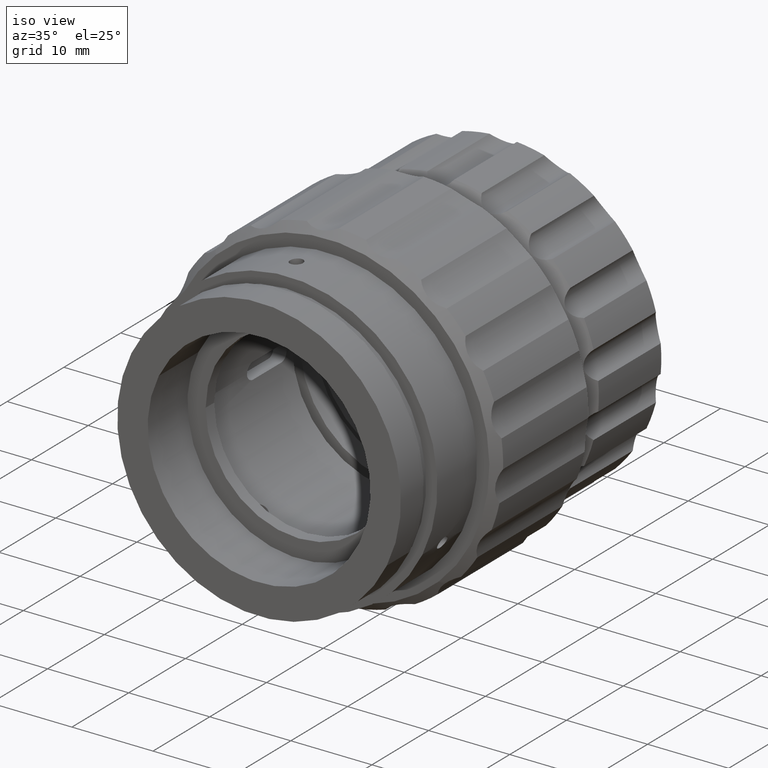
[diagram: clean part render]
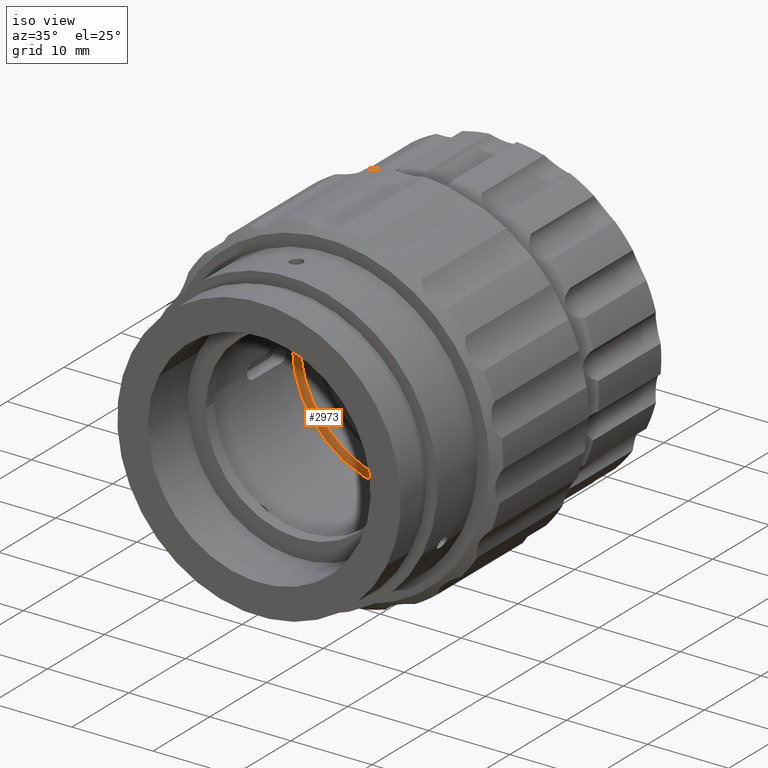
[diagram: same view with one face highlighted and labeled with its STEP entity id]
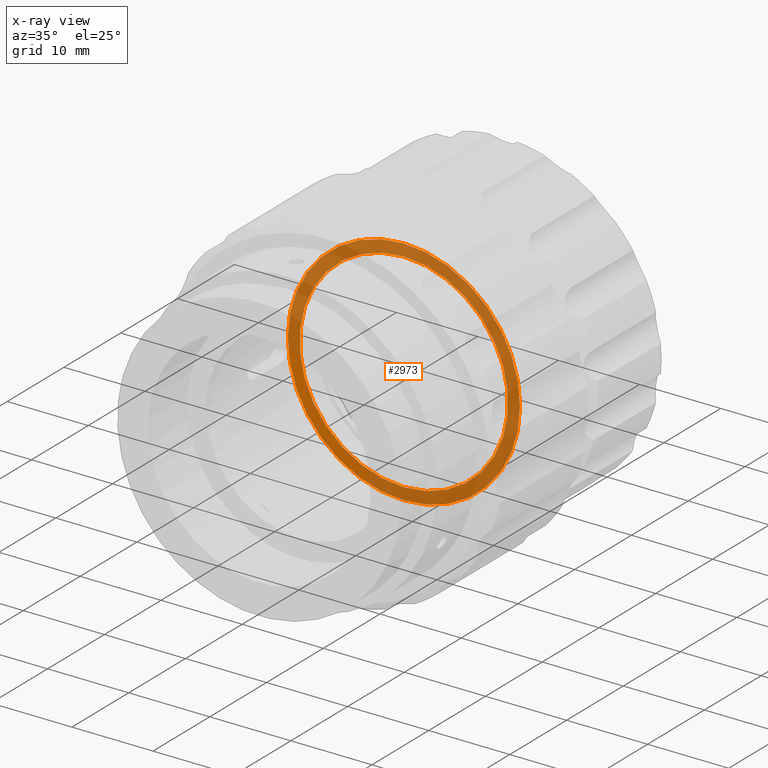
[diagram: x-ray of the same camera — body ghosted, the highlighted face saturated]
A machine part, iso view. The second image highlights one B-rep face of the part: STEP entity #2973.
The next image is the same camera in x-ray: the body ghosted, the highlighted face saturated — about 82% of this face is hidden behind the body in this view.
In plain terms, the highlighted planar face has unit normal (0, 1, 0).
Its self-contained STEP definition (entity closure, byte-faithful):
#197 = CIRCLE ( 'NONE', #9938, 12.84999999999999964 ) ;
#366 = CIRCLE ( 'NONE', #6040, 14.32499999999999751 ) ;
#569 = CARTESIAN_POINT ( 'NONE',  ( 5.971701014312827738, -10.04875568700542843, 44.90330644533106863 ) ) ;
#637 = DIRECTION ( 'NONE',  ( -0.000000000000000000, -1.000000000000000000, -0.000000000000000000 ) ) ;
#821 = EDGE_CURVE ( 'NONE', #5889, #7657, #9694, .T. ) ;
#826 = CARTESIAN_POINT ( 'NONE',  ( 5.971701014312827738, -10.04875568700542843, 44.90330644533106863 ) ) ;
#1538 = VERTEX_POINT ( 'NONE', #4859 ) ;
#2195 = DIRECTION ( 'NONE',  ( 0.000000000000000000, 0.000000000000000000, -1.000000000000000000 ) ) ;
#2699 = EDGE_LOOP ( 'NONE', ( #5521, #6916 ) ) ;
#2700 = CARTESIAN_POINT ( 'NONE',  ( 5.971701014312827738, -10.04875568700542843, 30.57830644533106934 ) ) ;
#2895 = FACE_OUTER_BOUND ( 'NONE', #9672, .T. ) ;
#2973 = ADVANCED_FACE ( 'NONE', ( #4378, #2895 ), #7462, .F. ) ;
#3043 = VERTEX_POINT ( 'NONE', #6193 ) ;
#3571 = ORIENTED_EDGE ( 'NONE', *, *, #821, .T. ) ;
#3614 = DIRECTION ( 'NONE',  ( 0.000000000000000000, -0.000000000000000000, 1.000000000000000000 ) ) ;
#3976 = ORIENTED_EDGE ( 'NONE', *, *, #6998, .T. ) ;
#4045 = DIRECTION ( 'NONE',  ( 0.000000000000000000, 0.000000000000000000, -1.000000000000000000 ) ) ;
#4187 = EDGE_CURVE ( 'NONE', #1538, #3043, #4811, .T. ) ;
#4342 = AXIS2_PLACEMENT_3D ( 'NONE', #4948, #4750, #4045 ) ;
#4378 = FACE_BOUND ( 'NONE', #2699, .T. ) ;
#4426 = DIRECTION ( 'NONE',  ( 0.000000000000000000, 1.000000000000000000, 0.000000000000000000 ) ) ;
#4750 = DIRECTION ( 'NONE',  ( -0.000000000000000000, -1.000000000000000000, -0.000000000000000000 ) ) ;
#4811 = CIRCLE ( 'NONE', #4342, 12.84999999999999964 ) ;
#4859 = CARTESIAN_POINT ( 'NONE',  ( 5.971701014312827738, -10.04875568700542843, 32.05330644533106721 ) ) ;
#4948 = CARTESIAN_POINT ( 'NONE',  ( 5.971701014312827738, -10.04875568700542843, 44.90330644533106863 ) ) ;
#5231 = CARTESIAN_POINT ( 'NONE',  ( -8.353298985687171552, -10.04875568700542843, 44.90330644533106863 ) ) ;
#5244 = CARTESIAN_POINT ( 'NONE',  ( 5.971701014312829514, -10.04875568700542843, 59.22830644533107147 ) ) ;
#5521 = ORIENTED_EDGE ( 'NONE', *, *, #4187, .F. ) ;
#5671 = DIRECTION ( 'NONE',  ( 0.000000000000000000, 0.000000000000000000, -1.000000000000000000 ) ) ;
#5889 = VERTEX_POINT ( 'NONE', #5244 ) ;
#6040 = AXIS2_PLACEMENT_3D ( 'NONE', #826, #637, #2195 ) ;
#6193 = CARTESIAN_POINT ( 'NONE',  ( 5.971701014312829514, -10.04875568700542843, 57.75330644533107005 ) ) ;
#6328 = DIRECTION ( 'NONE',  ( -0.000000000000000000, -1.000000000000000000, -0.000000000000000000 ) ) ;
#6453 = EDGE_CURVE ( 'NONE', #3043, #1538, #197, .T. ) ;
#6490 = DIRECTION ( 'NONE',  ( -0.000000000000000000, -1.000000000000000000, -0.000000000000000000 ) ) ;
#6916 = ORIENTED_EDGE ( 'NONE', *, *, #6453, .F. ) ;
#6998 = EDGE_CURVE ( 'NONE', #7657, #5889, #366, .T. ) ;
#7462 = PLANE ( 'NONE',  #8138 ) ;
#7657 = VERTEX_POINT ( 'NONE', #2700 ) ;
#8138 = AXIS2_PLACEMENT_3D ( 'NONE', #5231, #4426, #3614 ) ;
#8222 = DIRECTION ( 'NONE',  ( 0.000000000000000000, 0.000000000000000000, -1.000000000000000000 ) ) ;
#8998 = CARTESIAN_POINT ( 'NONE',  ( 5.971701014312827738, -10.04875568700542843, 44.90330644533106863 ) ) ;
#9672 = EDGE_LOOP ( 'NONE', ( #3976, #3571 ) ) ;
#9694 = CIRCLE ( 'NONE', #10010, 14.32499999999999751 ) ;
#9938 = AXIS2_PLACEMENT_3D ( 'NONE', #8998, #6490, #8222 ) ;
#10010 = AXIS2_PLACEMENT_3D ( 'NONE', #569, #6328, #5671 ) ;